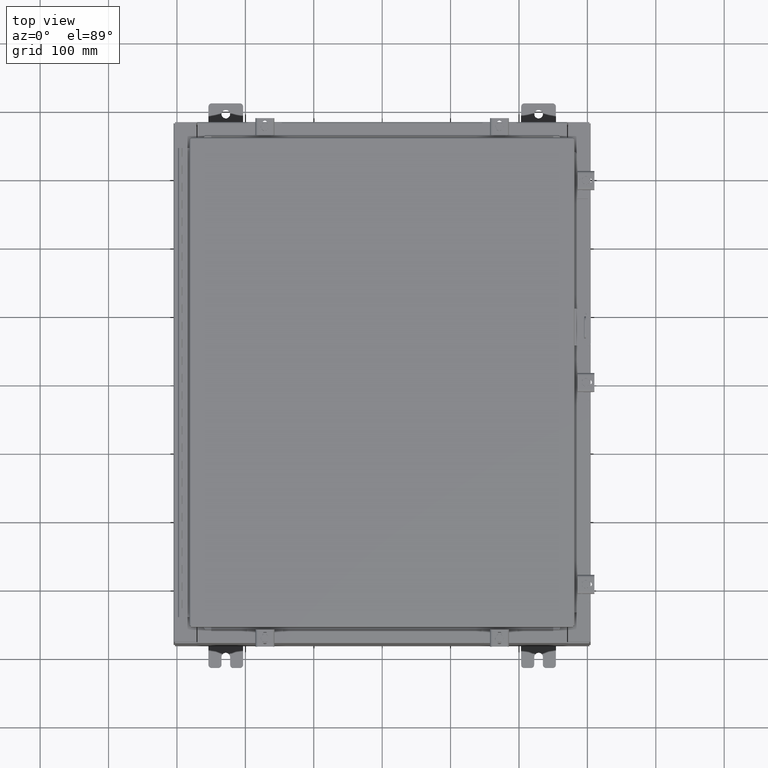
[diagram: clean part render]
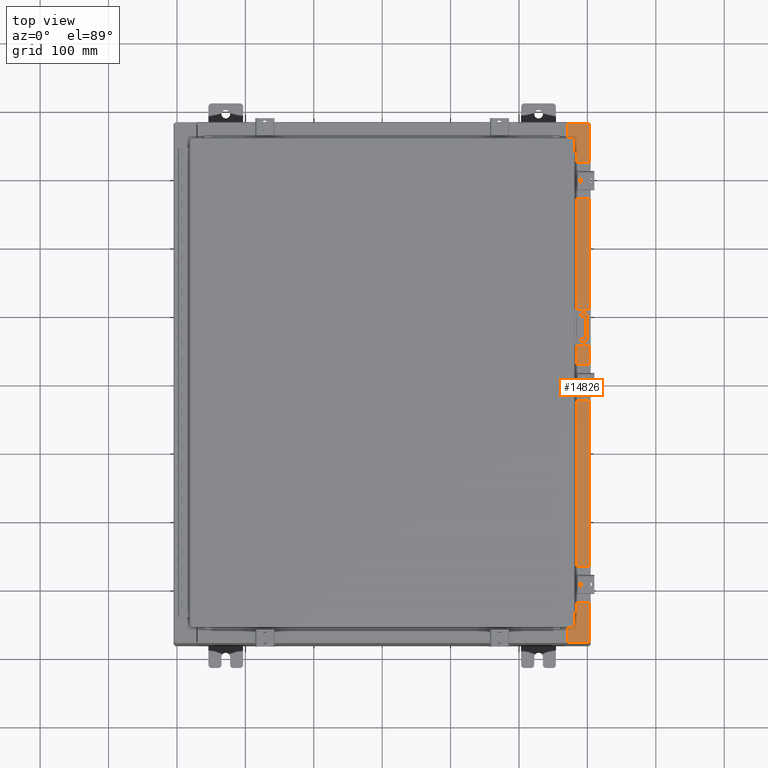
[diagram: same view with one face highlighted and labeled with its STEP entity id]
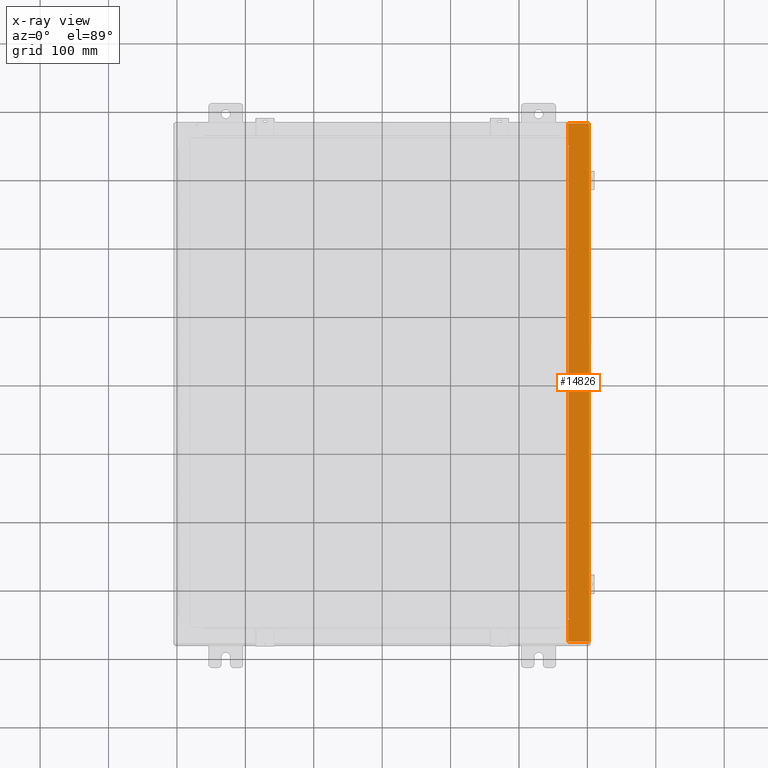
[diagram: x-ray of the same camera — body ghosted, the highlighted face saturated]
A machine part, top view. The second image highlights one B-rep face of the part: STEP entity #14826.
The next image is the same camera in x-ray: the body ghosted, the highlighted face saturated — about 0% of this face is hidden behind the body in this view.
In plain terms, the highlighted planar face has unit normal (-0, 0, -1).
Its self-contained STEP definition (entity closure, byte-faithful):
#70 = LINE ( 'NONE', #16341, #24127 ) ;
#240 = CIRCLE ( 'NONE', #36305, 0.01867499999999949400 ) ;
#260 = EDGE_CURVE ( 'NONE', #15340, #3246, #30087, .T. ) ;
#577 = AXIS2_PLACEMENT_3D ( 'NONE', #24234, #12620, #31718 ) ;
#694 = DIRECTION ( 'NONE',  ( -0.0000000000000000000, -1.000000000000000000, -0.0000000000000000000 ) ) ;
#1225 = CARTESIAN_POINT ( 'NONE',  ( 5.335691853495958500E-014, 14.92529999999999800, 9.925300000000065700 ) ) ;
#1330 = DIRECTION ( 'NONE',  ( -1.000000000000000000, 0.0000000000000000000, 0.0000000000000000000 ) ) ;
#1606 = VECTOR ( 'NONE', #694, 39.37007874015748100 ) ;
#1639 = CARTESIAN_POINT ( 'NONE',  ( 11.91230000000003200, -14.92529999999999800, 9.925300000000001800 ) ) ;
#1941 = CARTESIAN_POINT ( 'NONE',  ( 10.69970000000003200, -14.92529999999999800, 9.925300000000008900 ) ) ;
#2036 = CARTESIAN_POINT ( 'NONE',  ( 10.75005000000003400, 13.61242500000000000, 9.925300000000008900 ) ) ;
#2252 = VERTEX_POINT ( 'NONE', #35114 ) ;
#3246 = VERTEX_POINT ( 'NONE', #1941 ) ;
#4591 = ORIENTED_EDGE ( 'NONE', *, *, #260, .T. ) ;
#4636 = ORIENTED_EDGE ( 'NONE', *, *, #32834, .F. ) ;
#6147 = EDGE_CURVE ( 'NONE', #33517, #24193, #30474, .T. ) ;
#6482 = DIRECTION ( 'NONE',  ( 5.349571789159788500E-015, 0.0000000000000000000, 1.000000000000000000 ) ) ;
#6809 = VERTEX_POINT ( 'NONE', #16667 ) ;
#7217 = CARTESIAN_POINT ( 'NONE',  ( 10.69970000000003200, 14.92529999999999800, 9.925300000000008900 ) ) ;
#7370 = CARTESIAN_POINT ( 'NONE',  ( 5.335691853495958500E-014, 0.0000000000000000000, 9.925300000000065700 ) ) ;
#7564 = VECTOR ( 'NONE', #19945, 39.37007874015748100 ) ;
#7619 = VECTOR ( 'NONE', #12841, 39.37007874015748100 ) ;
#8718 = EDGE_CURVE ( 'NONE', #20427, #36206, #16272, .T. ) ;
#9149 = LINE ( 'NONE', #30418, #37230 ) ;
#9605 = LINE ( 'NONE', #1225, #33083 ) ;
#9744 = EDGE_CURVE ( 'NONE', #15340, #20427, #25564, .T. ) ;
#9847 = CARTESIAN_POINT ( 'NONE',  ( 10.71270000000003500, -13.59375000000000000, 9.925300000000008900 ) ) ;
#9872 = EDGE_CURVE ( 'NONE', #6809, #16320, #9149, .T. ) ;
#10015 = AXIS2_PLACEMENT_3D ( 'NONE', #7370, #33687, #31354 ) ;
#10345 = CARTESIAN_POINT ( 'NONE',  ( 10.75005000000003400, -13.59375000000000000, 9.925300000000008900 ) ) ;
#10725 = ORIENTED_EDGE ( 'NONE', *, *, #20825, .T. ) ;
#11282 = EDGE_CURVE ( 'NONE', #16320, #33517, #240, .T. ) ;
#11298 = CARTESIAN_POINT ( 'NONE',  ( 11.91230000000003200, -14.92529999999999800, 9.925300000000001800 ) ) ;
#11537 = EDGE_CURVE ( 'NONE', #13993, #24687, #9605, .T. ) ;
#12275 = CARTESIAN_POINT ( 'NONE',  ( 10.69970000000003200, -5.494975343389772900E-030, 9.925300000000008900 ) ) ;
#12279 = LINE ( 'NONE', #12275, #37602 ) ;
#12576 = DIRECTION ( 'NONE',  ( -5.135634964896009300E-031, -1.000000000000000000, 2.747344792763031300E-045 ) ) ;
#12620 = DIRECTION ( 'NONE',  ( 5.349571789159788500E-015, 0.0000000000000000000, 1.000000000000000000 ) ) ;
#12841 = DIRECTION ( 'NONE',  ( -0.0000000000000000000, 1.000000000000000000, -0.0000000000000000000 ) ) ;
#13643 = EDGE_CURVE ( 'NONE', #3246, #27217, #70, .T. ) ;
#13993 = VERTEX_POINT ( 'NONE', #21706 ) ;
#14477 = CARTESIAN_POINT ( 'NONE',  ( 10.69970000000003200, -5.494975343389772900E-030, 9.925300000000008900 ) ) ;
#14826 = ADVANCED_FACE ( 'NONE', ( #23034 ), #16200, .F. ) ;
#15340 = VERTEX_POINT ( 'NONE', #24475 ) ;
#15626 = CARTESIAN_POINT ( 'NONE',  ( 10.75005000000003400, 13.63109999999999800, 9.925300000000008900 ) ) ;
#15754 = ORIENTED_EDGE ( 'NONE', *, *, #8718, .F. ) ;
#15938 = ORIENTED_EDGE ( 'NONE', *, *, #9872, .F. ) ;
#16200 = PLANE ( 'NONE',  #10015 ) ;
#16272 = CIRCLE ( 'NONE', #577, 0.01867499999999949400 ) ;
#16320 = VERTEX_POINT ( 'NONE', #36104 ) ;
#16341 = CARTESIAN_POINT ( 'NONE',  ( 5.335691853495958500E-014, -14.92529999999999800, 9.925300000000065700 ) ) ;
#16667 = CARTESIAN_POINT ( 'NONE',  ( 10.71270000000003500, 13.59375000000000000, 9.925300000000008900 ) ) ;
#17618 = ORIENTED_EDGE ( 'NONE', *, *, #30483, .F. ) ;
#18340 = EDGE_CURVE ( 'NONE', #13993, #27217, #25766, .T. ) ;
#18937 = CARTESIAN_POINT ( 'NONE',  ( 10.75005000000003400, 13.63109999999999800, 9.925300000000008900 ) ) ;
#19482 = CARTESIAN_POINT ( 'NONE',  ( 10.69970000000003200, 13.63109999999999800, 9.925300000000008900 ) ) ;
#19945 = DIRECTION ( 'NONE',  ( -1.000000000000000000, 0.0000000000000000000, 0.0000000000000000000 ) ) ;
#20156 = VECTOR ( 'NONE', #1330, 39.37007874015748100 ) ;
#20386 = VECTOR ( 'NONE', #22876, 39.37007874015748100 ) ;
#20427 = VERTEX_POINT ( 'NONE', #22934 ) ;
#20506 = LINE ( 'NONE', #27655, #20156 ) ;
#20825 = EDGE_CURVE ( 'NONE', #24687, #24193, #12279, .T. ) ;
#21706 = CARTESIAN_POINT ( 'NONE',  ( 11.91230000000003200, 14.92529999999999800, 9.925300000000001800 ) ) ;
#22558 = LINE ( 'NONE', #9847, #7619 ) ;
#22780 = ORIENTED_EDGE ( 'NONE', *, *, #11282, .F. ) ;
#22876 = DIRECTION ( 'NONE',  ( 1.000000000000000000, 0.0000000000000000000, 0.0000000000000000000 ) ) ;
#22934 = CARTESIAN_POINT ( 'NONE',  ( 10.75005000000003400, -13.63109999999999800, 9.925300000000008900 ) ) ;
#23034 = FACE_OUTER_BOUND ( 'NONE', #30534, .T. ) ;
#24127 = VECTOR ( 'NONE', #29312, 39.37007874015748100 ) ;
#24193 = VERTEX_POINT ( 'NONE', #19482 ) ;
#24234 = CARTESIAN_POINT ( 'NONE',  ( 10.75005000000003400, -13.61242500000000000, 9.925300000000008900 ) ) ;
#24475 = CARTESIAN_POINT ( 'NONE',  ( 10.69970000000003200, -13.63109999999999800, 9.925300000000008900 ) ) ;
#24687 = VERTEX_POINT ( 'NONE', #7217 ) ;
#25564 = LINE ( 'NONE', #36630, #20386 ) ;
#25766 = LINE ( 'NONE', #11298, #1606 ) ;
#27217 = VERTEX_POINT ( 'NONE', #1639 ) ;
#27655 = CARTESIAN_POINT ( 'NONE',  ( 10.75005000000003400, -13.59375000000000000, 9.925300000000008900 ) ) ;
#29301 = ORIENTED_EDGE ( 'NONE', *, *, #6147, .F. ) ;
#29312 = DIRECTION ( 'NONE',  ( 1.000000000000000000, 1.305543112181250400E-031, -5.349571789159789300E-015 ) ) ;
#30087 = LINE ( 'NONE', #14477, #33599 ) ;
#30225 = DIRECTION ( 'NONE',  ( 1.000000000000000000, 0.0000000000000000000, 0.0000000000000000000 ) ) ;
#30418 = CARTESIAN_POINT ( 'NONE',  ( 10.71270000000003500, 13.59375000000000000, 9.925300000000008900 ) ) ;
#30474 = LINE ( 'NONE', #18937, #7564 ) ;
#30483 = EDGE_CURVE ( 'NONE', #36206, #2252, #20506, .T. ) ;
#30533 = ORIENTED_EDGE ( 'NONE', *, *, #13643, .T. ) ;
#30534 = EDGE_LOOP ( 'NONE', ( #32761, #4591, #30533, #35315, #36955, #10725, #29301, #22780, #15938, #4636, #17618, #15754 ) ) ;
#31354 = DIRECTION ( 'NONE',  ( -1.000000000000000000, 0.0000000000000000000, 5.349571789159788500E-015 ) ) ;
#31718 = DIRECTION ( 'NONE',  ( 1.000000000000000000, 0.0000000000000000000, 0.0000000000000000000 ) ) ;
#32721 = DIRECTION ( 'NONE',  ( 1.000000000000000000, 0.0000000000000000000, 0.0000000000000000000 ) ) ;
#32761 = ORIENTED_EDGE ( 'NONE', *, *, #9744, .F. ) ;
#32834 = EDGE_CURVE ( 'NONE', #2252, #6809, #22558, .T. ) ;
#33083 = VECTOR ( 'NONE', #36706, 39.37007874015748100 ) ;
#33517 = VERTEX_POINT ( 'NONE', #15626 ) ;
#33599 = VECTOR ( 'NONE', #12576, 39.37007874015748100 ) ;
#33687 = DIRECTION ( 'NONE',  ( -5.349571789159788500E-015, 0.0000000000000000000, -1.000000000000000000 ) ) ;
#35114 = CARTESIAN_POINT ( 'NONE',  ( 10.71270000000003500, -13.59375000000000000, 9.925300000000008900 ) ) ;
#35315 = ORIENTED_EDGE ( 'NONE', *, *, #18340, .F. ) ;
#36104 = CARTESIAN_POINT ( 'NONE',  ( 10.75005000000003400, 13.59375000000000000, 9.925300000000008900 ) ) ;
#36206 = VERTEX_POINT ( 'NONE', #10345 ) ;
#36305 = AXIS2_PLACEMENT_3D ( 'NONE', #2036, #6482, #32721 ) ;
#36541 = DIRECTION ( 'NONE',  ( -5.135634964896009300E-031, -1.000000000000000000, 2.747344792763031300E-045 ) ) ;
#36630 = CARTESIAN_POINT ( 'NONE',  ( 10.69970000000003200, -13.63109999999999800, 9.925300000000008900 ) ) ;
#36706 = DIRECTION ( 'NONE',  ( -1.000000000000000000, 4.861730685829018000E-063, 5.349571789159789300E-015 ) ) ;
#36955 = ORIENTED_EDGE ( 'NONE', *, *, #11537, .T. ) ;
#37230 = VECTOR ( 'NONE', #30225, 39.37007874015748100 ) ;
#37602 = VECTOR ( 'NONE', #36541, 39.37007874015748100 ) ;